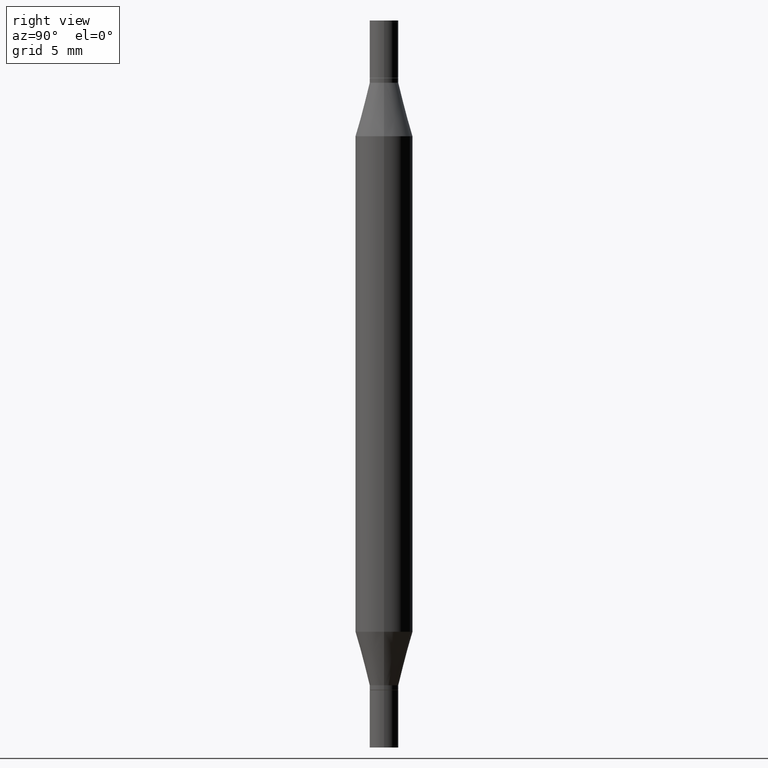
[diagram: clean part render]
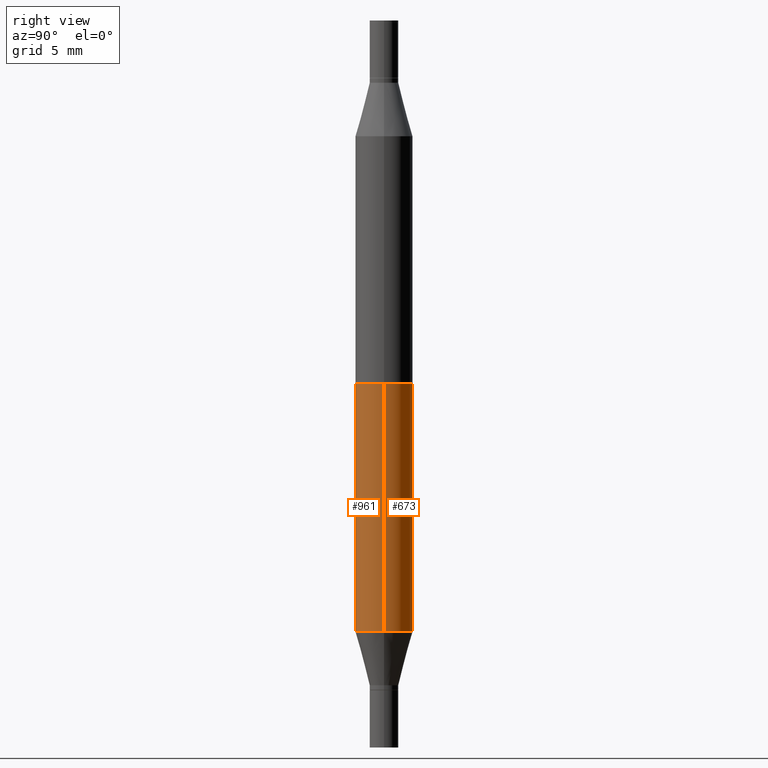
[diagram: same view with one multi-face feature highlighted, each face labeled with its STEP entity id]
A machine part, right view. The highlighted faces form ONE feature: a constant-radius fillet chain: 2 tangent blend faces with common blend radius 1.4999 mm. The faces share edges in the B-rep.
Their STEP definitions:
[1] entity #961 (Cylinder):
#27 = DIRECTION ( 'NONE',  ( -2.445468806185136597E-29, -3.491805094961124077E-15, -1.000000000000000000 ) ) ;
#53 = AXIS2_PLACEMENT_3D ( 'NONE', #902, #770, #679 ) ;
#67 = CIRCLE ( 'NONE', #53, 0.05904999999999999832 ) ;
#112 = DIRECTION ( 'NONE',  ( -2.445468806185136877E-29, -3.491805094961123683E-15, -1.000000000000000000 ) ) ;
#126 = CARTESIAN_POINT ( 'NONE',  ( -0.05904999999999999832, -4.260284833459826385E-16, -0.2380954988232817371 ) ) ;
#143 = EDGE_CURVE ( 'NONE', #595, #708, #579, .T. ) ;
#186 = VECTOR ( 'NONE', #594, 39.37007874015748143 ) ;
#187 = ORIENTED_EDGE ( 'NONE', *, *, #212, .F. ) ;
#201 = LINE ( 'NONE', #275, #383 ) ;
#212 = EDGE_CURVE ( 'NONE', #708, #882, #667, .T. ) ;
#275 = CARTESIAN_POINT ( 'NONE',  ( -0.05904999999999999832, -4.818735010038875060E-15, -1.496099999999999985 ) ) ;
#317 = EDGE_CURVE ( 'NONE', #903, #882, #67, .T. ) ;
#343 = DIRECTION ( 'NONE',  ( 1.000000000000000000, -6.982962677686273021E-15, 0.000000000000000000 ) ) ;
#356 = CARTESIAN_POINT ( 'NONE',  ( 3.076410765668157214E-29, -8.311408901143909150E-16, -0.2380954988232817371 ) ) ;
#364 = CYLINDRICAL_SURFACE ( 'NONE', #693, 0.05904999999999999832 ) ;
#374 = AXIS2_PLACEMENT_3D ( 'NONE', #356, #669, #881 ) ;
#383 = VECTOR ( 'NONE', #112, 39.37007874015748143 ) ;
#429 = CARTESIAN_POINT ( 'NONE',  ( 0.05904999999999999832, -5.636191362924657961E-15, -1.496099999999999985 ) ) ;
#435 = EDGE_LOOP ( 'NONE', ( #731, #618, #574, #187 ) ) ;
#484 = EDGE_CURVE ( 'NONE', #595, #903, #201, .T. ) ;
#574 = ORIENTED_EDGE ( 'NONE', *, *, #317, .T. ) ;
#579 = CIRCLE ( 'NONE', #374, 0.05904999999999999832 ) ;
#594 = DIRECTION ( 'NONE',  ( -2.445468806185136877E-29, -3.491805094961123683E-15, -1.000000000000000000 ) ) ;
#595 = VERTEX_POINT ( 'NONE', #126 ) ;
#616 = CARTESIAN_POINT ( 'NONE',  ( 0.05904999999999999832, -1.243484836231765441E-15, -0.2380954988232817371 ) ) ;
#618 = ORIENTED_EDGE ( 'NONE', *, *, #484, .T. ) ;
#640 = CARTESIAN_POINT ( 'NONE',  ( 0.05904999999999999832, -4.804643186156566455E-15, -1.258004501176718248 ) ) ;
#652 = CARTESIAN_POINT ( 'NONE',  ( -0.05904999999999999832, -2.206690208753205272E-15, -1.258004501176718248 ) ) ;
#667 = LINE ( 'NONE', #429, #186 ) ;
#669 = DIRECTION ( 'NONE',  ( 2.445468806185136597E-29, 3.491805094961124077E-15, 1.000000000000000000 ) ) ;
#679 = DIRECTION ( 'NONE',  ( 1.000000000000000000, -6.982962677686273021E-15, 0.000000000000000000 ) ) ;
#693 = AXIS2_PLACEMENT_3D ( 'NONE', #936, #27, #343 ) ;
#708 = VERTEX_POINT ( 'NONE', #616 ) ;
#731 = ORIENTED_EDGE ( 'NONE', *, *, #143, .F. ) ;
#770 = DIRECTION ( 'NONE',  ( -2.445468806185136597E-29, 3.491481338843145583E-15, 1.000000000000000000 ) ) ;
#881 = DIRECTION ( 'NONE',  ( 1.000000000000000000, -6.982962677686265133E-15, 0.000000000000000000 ) ) ;
#882 = VERTEX_POINT ( 'NONE', #640 ) ;
#902 = CARTESIAN_POINT ( 'NONE',  ( 3.076410765668157214E-29, -4.392299240039191535E-15, -1.258004501176718248 ) ) ;
#903 = VERTEX_POINT ( 'NONE', #652 ) ;
#936 = CARTESIAN_POINT ( 'NONE',  ( 0.000000000000000000, -5.223847416807283040E-15, -1.496099999999999985 ) ) ;
#953 = FACE_OUTER_BOUND ( 'NONE', #435, .T. ) ;
#961 = ADVANCED_FACE ( 'NONE', ( #953 ), #364, .T. ) ;
[2] entity #673 (Cylinder):
#34 = ORIENTED_EDGE ( 'NONE', *, *, #484, .F. ) ;
#76 = CARTESIAN_POINT ( 'NONE',  ( 0.000000000000000000, -5.223847416807283040E-15, -1.496099999999999985 ) ) ;
#112 = DIRECTION ( 'NONE',  ( -2.445468806185136877E-29, -3.491805094961123683E-15, -1.000000000000000000 ) ) ;
#122 = ORIENTED_EDGE ( 'NONE', *, *, #913, .T. ) ;
#126 = CARTESIAN_POINT ( 'NONE',  ( -0.05904999999999999832, -4.260284833459826385E-16, -0.2380954988232817371 ) ) ;
#157 = DIRECTION ( 'NONE',  ( 1.000000000000000000, -6.982962677686273021E-15, 0.000000000000000000 ) ) ;
#169 = CIRCLE ( 'NONE', #453, 0.05904999999999999832 ) ;
#186 = VECTOR ( 'NONE', #594, 39.37007874015748143 ) ;
#201 = LINE ( 'NONE', #275, #383 ) ;
#212 = EDGE_CURVE ( 'NONE', #708, #882, #667, .T. ) ;
#214 = DIRECTION ( 'NONE',  ( -2.445468806185136597E-29, 3.491481338843145583E-15, 1.000000000000000000 ) ) ;
#275 = CARTESIAN_POINT ( 'NONE',  ( -0.05904999999999999832, -4.818735010038875060E-15, -1.496099999999999985 ) ) ;
#291 = CARTESIAN_POINT ( 'NONE',  ( 3.076410765668157214E-29, -8.311408901143909150E-16, -0.2380954988232817371 ) ) ;
#309 = ORIENTED_EDGE ( 'NONE', *, *, #606, .F. ) ;
#365 = DIRECTION ( 'NONE',  ( 1.000000000000000000, -6.982962677686265133E-15, 0.000000000000000000 ) ) ;
#383 = VECTOR ( 'NONE', #112, 39.37007874015748143 ) ;
#409 = EDGE_LOOP ( 'NONE', ( #34, #309, #727, #122 ) ) ;
#429 = CARTESIAN_POINT ( 'NONE',  ( 0.05904999999999999832, -5.636191362924657961E-15, -1.496099999999999985 ) ) ;
#436 = DIRECTION ( 'NONE',  ( 1.000000000000000000, -6.982962677686273021E-15, 0.000000000000000000 ) ) ;
#453 = AXIS2_PLACEMENT_3D ( 'NONE', #647, #214, #436 ) ;
#484 = EDGE_CURVE ( 'NONE', #595, #903, #201, .T. ) ;
#513 = DIRECTION ( 'NONE',  ( 2.445468806185136597E-29, 3.491805094961124077E-15, 1.000000000000000000 ) ) ;
#594 = DIRECTION ( 'NONE',  ( -2.445468806185136877E-29, -3.491805094961123683E-15, -1.000000000000000000 ) ) ;
#595 = VERTEX_POINT ( 'NONE', #126 ) ;
#606 = EDGE_CURVE ( 'NONE', #708, #595, #725, .T. ) ;
#613 = DIRECTION ( 'NONE',  ( -2.445468806185136597E-29, -3.491805094961124077E-15, -1.000000000000000000 ) ) ;
#616 = CARTESIAN_POINT ( 'NONE',  ( 0.05904999999999999832, -1.243484836231765441E-15, -0.2380954988232817371 ) ) ;
#640 = CARTESIAN_POINT ( 'NONE',  ( 0.05904999999999999832, -4.804643186156566455E-15, -1.258004501176718248 ) ) ;
#647 = CARTESIAN_POINT ( 'NONE',  ( 3.076410765668157214E-29, -4.392299240039191535E-15, -1.258004501176718248 ) ) ;
#652 = CARTESIAN_POINT ( 'NONE',  ( -0.05904999999999999832, -2.206690208753205272E-15, -1.258004501176718248 ) ) ;
#667 = LINE ( 'NONE', #429, #186 ) ;
#673 = ADVANCED_FACE ( 'NONE', ( #759 ), #965, .T. ) ;
#708 = VERTEX_POINT ( 'NONE', #616 ) ;
#725 = CIRCLE ( 'NONE', #785, 0.05904999999999999832 ) ;
#727 = ORIENTED_EDGE ( 'NONE', *, *, #212, .T. ) ;
#759 = FACE_OUTER_BOUND ( 'NONE', #409, .T. ) ;
#785 = AXIS2_PLACEMENT_3D ( 'NONE', #291, #513, #365 ) ;
#805 = AXIS2_PLACEMENT_3D ( 'NONE', #76, #613, #157 ) ;
#882 = VERTEX_POINT ( 'NONE', #640 ) ;
#903 = VERTEX_POINT ( 'NONE', #652 ) ;
#913 = EDGE_CURVE ( 'NONE', #882, #903, #169, .T. ) ;
#965 = CYLINDRICAL_SURFACE ( 'NONE', #805, 0.05904999999999999832 ) ;